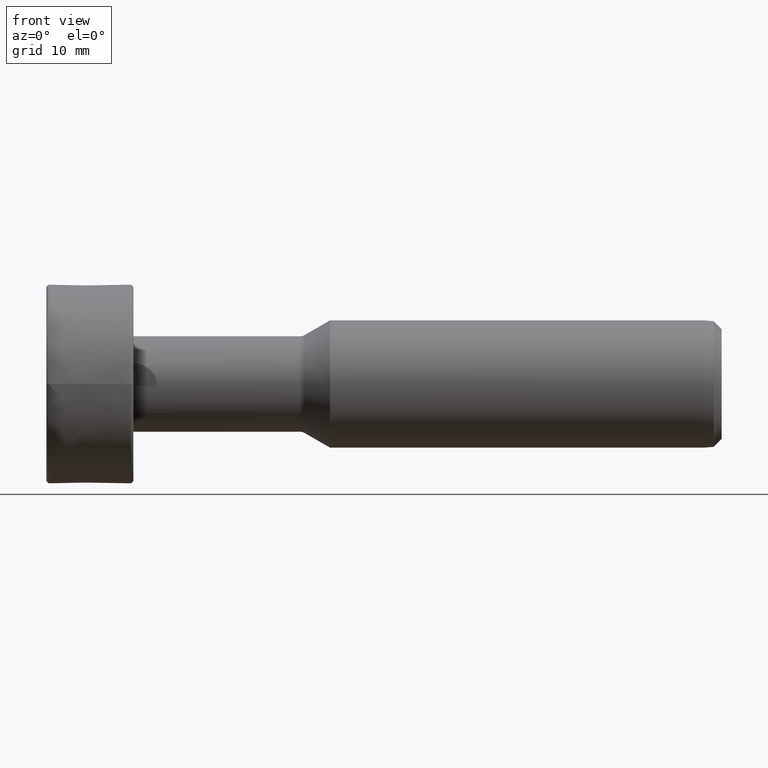
[diagram: clean part render]
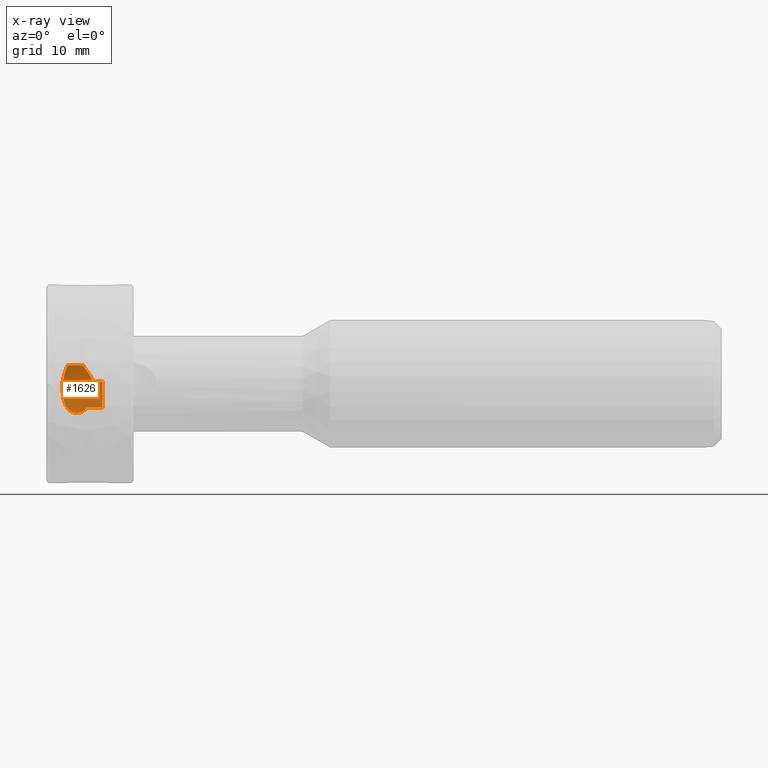
[diagram: x-ray — body ghosted, one internal face saturated and labeled with its STEP entity id]
A machine part, front view, then the same camera in x-ray: the body is ghosted and one INTERNAL B-rep face — a face not visible from any outside direction — is saturated and labeled: STEP entity #1626.
In plain terms, the highlighted face is a freeform B-spline surface patch.
Its self-contained STEP definition (entity closure, byte-faithful):
#54 = CARTESIAN_POINT ( 'NONE',  ( -82.21236994681083800, 5.681389715296036000, 2.359999999999960800 ) ) ;
#93 = CARTESIAN_POINT ( 'NONE',  ( -82.41377223601965300, 5.873575495136855700, 1.829999999999959000 ) ) ;
#98 = CARTESIAN_POINT ( 'NONE',  ( -77.89106898709837900, 6.258381755779039300, -1.910451854629144200 ) ) ;
#112 = CARTESIAN_POINT ( 'NONE',  ( -82.93455654997748600, 6.536540744666016400, 0.3013363291156840900 ) ) ;
#127 = VERTEX_POINT ( 'NONE', #2659 ) ;
#150 = CARTESIAN_POINT ( 'NONE',  ( -77.89122939808474700, 5.372999999999954900, -2.994871288672967600 ) ) ;
#160 =( BOUNDED_SURFACE ( )  B_SPLINE_SURFACE ( 3, 3, ( 
 ( #2401, #2186, #395, #2469 ),
 ( #711, #2776, #995, #3072 ),
 ( #1304, #3381, #1592, #3702 ),
 ( #1906, #98, #2200, #412 ),
 ( #2481, #724, #2793, #1010 ),
 ( #3080, #1321, #3397, #1606 ),
 ( #3714, #1922, #112, #2211 ) ),
 .UNSPECIFIED., .F., .F., .F. ) 
 B_SPLINE_SURFACE_WITH_KNOTS ( ( 4, 3, 4 ),
 ( 4, 4 ),
 ( 0.02235006169439711000, 0.02399819079621090500, 0.2267027528359130700 ),
 ( 0.0000000000000000000, 1.000000000000000000 ),
 .UNSPECIFIED. ) 
 GEOMETRIC_REPRESENTATION_ITEM ( )  RATIONAL_B_SPLINE_SURFACE ( (
 ( 1.000000000000000000, 0.9122735046954706400, 0.9122735046954706400, 1.000000000000000000),
 ( 1.000000000000000000, 0.9122735046954706400, 0.9122735046954706400, 1.000000000000000000),
 ( 1.000000000000000000, 0.9122735046954706400, 0.9122735046954706400, 1.000000000000000000),
 ( 1.000000000000000000, 0.9122735046954706400, 0.9122735046954706400, 1.000000000000000000),
 ( 1.000000000000000000, 0.9122735046954706400, 0.9122735046954706400, 1.000000000000000000),
 ( 1.000000000000000000, 0.9122735046954706400, 0.9122735046954706400, 1.000000000000000000),
 ( 1.000000000000000000, 0.9122735046954706400, 0.9122735046954706400, 1.000000000000000000) ) ) 
 REPRESENTATION_ITEM ( '' )  SURFACE ( )  );
#204 = CARTESIAN_POINT ( 'NONE',  ( -80.30338461936678100, 5.681389715296080400, 2.359999999999960800 ) ) ;
#214 = CARTESIAN_POINT ( 'NONE',  ( -82.21236994681083800, 5.681389715296036000, 2.359999999999960800 ) ) ;
#229 = CARTESIAN_POINT ( 'NONE',  ( -79.75763146719779700, 5.943922446692437400, 1.604214136166918700 ) ) ;
#239 = CARTESIAN_POINT ( 'NONE',  ( -82.83008512443952000, 6.001660126888085100, -1.367736121431567800 ) ) ;
#256 = CARTESIAN_POINT ( 'NONE',  ( -81.27947431575924500, 4.956398815248062000, -3.644536259515121400 ) ) ;
#279 = VERTEX_POINT ( 'NONE', #1142 ) ;
#303 = CARTESIAN_POINT ( 'NONE',  ( -80.93991243352060400, 4.947710242107506300, -3.656221062410815100 ) ) ;
#329 = B_SPLINE_CURVE_WITH_KNOTS ( 'NONE', 3,
 ( #537, #229, #2610, #836, #2911, #1139 ),
 .UNSPECIFIED., .F., .F.,
 ( 4, 2, 4 ),
 ( 1.951563910473908000E-018, 0.0008984144750334468700, 0.001796828950066891800 ),
 .UNSPECIFIED. ) ;
#395 = CARTESIAN_POINT ( 'NONE',  ( -77.85003232940846400, 6.536945577275368200, 0.3013549920105043600 ) ) ;
#412 = CARTESIAN_POINT ( 'NONE',  ( -77.89106898709837900, 5.681389715296028900, 2.360000000000105600 ) ) ;
#421 = B_SPLINE_CURVE_WITH_KNOTS ( 'NONE', 3,
 ( #1552, #3653, #1857, #54 ),
 .UNSPECIFIED., .F., .F.,
 ( 4, 4 ),
 ( 6.106282077343213300E-018, 0.0005986637253680639400 ),
 .UNSPECIFIED. ) ;
#445 = CARTESIAN_POINT ( 'NONE',  ( -82.76972944417190100, 6.131772617439352800, 0.5655362208290071200 ) ) ;
#473 = ORIENTED_EDGE ( 'NONE', *, *, #3342, .F. ) ;
#485 = EDGE_CURVE ( 'NONE', #1641, #3846, #329, .T. ) ;
#515 = CARTESIAN_POINT ( 'NONE',  ( -82.90769203177126200, 6.165328255636867800, -0.1217656507794920700 ) ) ;
#537 = CARTESIAN_POINT ( 'NONE',  ( -79.94665751668694000, 5.873575495136860200, 1.829999999999959000 ) ) ;
#546 = CARTESIAN_POINT ( 'NONE',  ( -82.72979969133547200, 5.832903617187693800, -1.966394439077956900 ) ) ;
#564 = CARTESIAN_POINT ( 'NONE',  ( -81.06693568702642900, 4.947710242108669800, -3.656221062409240400 ) ) ;
#609 = ORIENTED_EDGE ( 'NONE', *, *, #1365, .F. ) ;
#618 = CARTESIAN_POINT ( 'NONE',  ( -80.81285425312452700, 4.960069429671967200, -3.639651873097961200 ) ) ;
#711 = CARTESIAN_POINT ( 'NONE',  ( -77.86373094548953600, 4.920118488332617400, -3.693267274086665900 ) ) ;
#724 = CARTESIAN_POINT ( 'NONE',  ( -79.57223150805809600, 6.258381755779040200, -1.910451854629144900 ) ) ;
#727 = EDGE_CURVE ( 'NONE', #2379, #1641, #1706, .T. ) ;
#747 = VERTEX_POINT ( 'NONE', #3237 ) ;
#752 = CARTESIAN_POINT ( 'NONE',  ( -79.83393623307554800, 5.372999999999973600, -2.996441238715067600 ) ) ;
#761 = EDGE_LOOP ( 'NONE', ( #1783, #609, #2144, #2707, #2766, #473, #1018, #2721, #3304, #2016, #3801, #2899 ) ) ;
#767 = EDGE_CURVE ( 'NONE', #3220, #1417, #2522, .T. ) ;
#836 = CARTESIAN_POINT ( 'NONE',  ( -79.28002988373579300, 6.097272181570265700, 0.8588428863143676700 ) ) ;
#846 = CARTESIAN_POINT ( 'NONE',  ( -82.55878646374218000, 5.610183771814507600, -2.531980073964256000 ) ) ;
#848 = CARTESIAN_POINT ( 'NONE',  ( -80.17410978981325800, 5.751036186631983700, 2.192335277137921400 ) ) ;
#900 = B_SPLINE_CURVE_WITH_KNOTS ( 'NONE', 3,
 ( #3529, #515, #3831, #2038, #239, #2324, #546, #2626, #846, #2921, #1147, #3218, #1449, #3540, #1747, #3844, #2049, #256, #2337, #564 ),
 .UNSPECIFIED., .F., .F.,
 ( 4, 2, 2, 2, 2, 2, 2, 2, 2, 4 ),
 ( 2.710505431213761100E-019, 0.001264043738831955300, 0.001896065608247934600, 0.002528087477663914100, 0.003160109347079893000, 0.003792131216495872700, 0.004108142151203862300, 0.004424153085911851500, 0.004740164020619841600, 0.005056174955327831700 ),
 .UNSPECIFIED. ) ;
#918 = CARTESIAN_POINT ( 'NONE',  ( -80.45553111303017600, 5.040098274914382300, -3.528508453426459000 ) ) ;
#922 = CARTESIAN_POINT ( 'NONE',  ( -82.89866533100033100, 6.144736698758697100, 0.2999999999999570200 ) ) ;
#942 = VERTEX_POINT ( 'NONE', #93 ) ;
#994 = EDGE_CURVE ( 'NONE', #2339, #747, #3890, .T. ) ;
#995 = CARTESIAN_POINT ( 'NONE',  ( -77.86373094548955000, 6.536540744666013800, 0.3013363291156836400 ) ) ;
#1010 = CARTESIAN_POINT ( 'NONE',  ( -79.57223150805809600, 5.681389715296029800, 2.360000000000106000 ) ) ;
#1012 = CARTESIAN_POINT ( 'NONE',  ( -79.04725606622616900, 6.144736698758697100, 0.2999999999999570800 ) ) ;
#1018 = ORIENTED_EDGE ( 'NONE', *, *, #1271, .F. ) ;
#1036 = DIRECTION ( 'NONE',  ( -1.000000000000000000, 0.0000000000000000000, 0.0000000000000000000 ) ) ;
#1050 = CARTESIAN_POINT ( 'NONE',  ( -81.06693568702642900, 4.947710242108669800, -3.656221062409240400 ) ) ;
#1071 = VERTEX_POINT ( 'NONE', #1050 ) ;
#1105 = CARTESIAN_POINT ( 'NONE',  ( -80.93971306184813800, 5.681389715296091000, 2.359999999999962100 ) ) ;
#1139 = CARTESIAN_POINT ( 'NONE',  ( -79.04725606622616900, 6.144736698758697100, 0.2999999999999570800 ) ) ;
#1142 = CARTESIAN_POINT ( 'NONE',  ( -82.21236994681083800, 5.681389715296036000, 2.359999999999960800 ) ) ;
#1147 = CARTESIAN_POINT ( 'NONE',  ( -82.28164640299955600, 5.351118582322630600, -3.039790517262842300 ) ) ;
#1161 = CARTESIAN_POINT ( 'NONE',  ( -82.89866533100033100, 6.144736698758697100, 0.2999999999999570200 ) ) ;
#1176 = CARTESIAN_POINT ( 'NONE',  ( -82.84072026408014700, 6.144736698758703300, 0.2999999999999553600 ) ) ;
#1205 = CARTESIAN_POINT ( 'NONE',  ( -79.96922946337164700, 5.267065286034723600, -3.186395645556470600 ) ) ;
#1271 = EDGE_CURVE ( 'NONE', #1417, #942, #2352, .T. ) ;
#1304 = CARTESIAN_POINT ( 'NONE',  ( -77.87739996629396400, 4.920118488332617400, -3.693267274086665900 ) ) ;
#1321 = CARTESIAN_POINT ( 'NONE',  ( -81.25339402901781200, 6.258381755779040200, -1.910451854629144900 ) ) ;
#1326 = CARTESIAN_POINT ( 'NONE',  ( -78.54841245633292600, 6.144736698758705100, 0.2999999999999555200 ) ) ;
#1351 = CARTESIAN_POINT ( 'NONE',  ( -79.00729087313615700, 5.372999999999972700, -2.996441238715068500 ) ) ;
#1358 = CARTESIAN_POINT ( 'NONE',  ( -82.71987364605391200, 6.101708987259280000, 0.8278358452225436100 ) ) ;
#1365 = EDGE_CURVE ( 'NONE', #3846, #2339, #2738, .T. ) ;
#1402 = CARTESIAN_POINT ( 'NONE',  ( -77.85003232940846400, 0.0000000000000000000, 0.0000000000000000000 ) ) ;
#1417 = VERTEX_POINT ( 'NONE', #1480 ) ;
#1449 = CARTESIAN_POINT ( 'NONE',  ( -82.01016482512638100, 5.181904943195379900, -3.316693364894105500 ) ) ;
#1475 = CIRCLE ( 'NONE', #3329, 6.152436700589309900 ) ;
#1480 = CARTESIAN_POINT ( 'NONE',  ( -82.81174773062005600, 6.144736698758706000, 0.2999999999999571900 ) ) ;
#1552 = CARTESIAN_POINT ( 'NONE',  ( -82.41377223601965300, 5.873575495136855700, 1.829999999999959000 ) ) ;
#1592 = CARTESIAN_POINT ( 'NONE',  ( -77.87739996629395000, 6.536540744666013800, 0.3013363291156836400 ) ) ;
#1606 = CARTESIAN_POINT ( 'NONE',  ( -81.25339402901781200, 5.681389715296029800, 2.360000000000106000 ) ) ;
#1609 = CARTESIAN_POINT ( 'NONE',  ( -78.04956884643976900, 6.144736698758707800, 0.2999999999999556400 ) ) ;
#1626 = ADVANCED_FACE ( 'NONE', ( #3883 ), #160, .F. ) ;
#1641 = VERTEX_POINT ( 'NONE', #2806 ) ;
#1642 = CARTESIAN_POINT ( 'NONE',  ( -78.13931324519973000, 5.372999999999972700, -2.996441238715067600 ) ) ;
#1648 = CARTESIAN_POINT ( 'NONE',  ( -82.51691516913391000, 5.947666208068849200, 1.592198144319882500 ) ) ;
#1654 = AXIS2_PLACEMENT_3D ( 'NONE', #2813, #1036, #3107 ) ;
#1682 = EDGE_CURVE ( 'NONE', #127, #2791, #1838, .T. ) ;
#1695 = DIRECTION ( 'NONE',  ( 0.0000000000000000000, -4.440892098500626200E-015, -1.000000000000000000 ) ) ;
#1706 = B_SPLINE_CURVE_WITH_KNOTS ( 'NONE', 3,
 ( #2923, #848, #3542, #1748 ),
 .UNSPECIFIED., .F., .F.,
 ( 4, 4 ),
 ( 1.939479807224432100E-018, 0.0006671503576851005400 ),
 .UNSPECIFIED. ) ;
#1747 = CARTESIAN_POINT ( 'NONE',  ( -81.76576920615603700, 5.071226813481465500, -3.483262367301703100 ) ) ;
#1748 = CARTESIAN_POINT ( 'NONE',  ( -79.94665751668694000, 5.873575495136860200, 1.829999999999959000 ) ) ;
#1783 = ORIENTED_EDGE ( 'NONE', *, *, #994, .F. ) ;
#1838 = B_SPLINE_CURVE_WITH_KNOTS ( 'NONE', 3,
 ( #752, #2518, #1351, #3435, #1642, #3747, #1949, #150, #2242 ),
 .UNSPECIFIED., .F., .F.,
 ( 4, 1, 1, 1, 2, 4 ),
 ( 0.0000000000000000000, 0.0009919744319273036700, 0.001487961647890976400, 0.001735955255872812500, 0.001859952059863709900, 0.001983948863854606900 ),
 .UNSPECIFIED. ) ;
#1857 = CARTESIAN_POINT ( 'NONE',  ( -82.30006743293289200, 5.750733920900452200, 2.193062942145716400 ) ) ;
#1862 = EDGE_CURVE ( 'NONE', #3220, #1071, #900, .T. ) ;
#1906 = CARTESIAN_POINT ( 'NONE',  ( -77.89106898709837900, 4.920118488332617400, -3.693267274086665900 ) ) ;
#1922 = CARTESIAN_POINT ( 'NONE',  ( -82.93455654997748600, 6.258381755779040200, -1.910451854629144900 ) ) ;
#1924 = CARTESIAN_POINT ( 'NONE',  ( -77.85003232940849200, 6.145118172562525200, 0.2999999999999571900 ) ) ;
#1949 = CARTESIAN_POINT ( 'NONE',  ( -77.93265190521489700, 5.372999999999974500, -2.996441238715068500 ) ) ;
#2010 = CARTESIAN_POINT ( 'NONE',  ( -81.57604150432949600, 5.681389715296090200, 2.359999999999958100 ) ) ;
#2016 = ORIENTED_EDGE ( 'NONE', *, *, #2457, .T. ) ;
#2038 = CARTESIAN_POINT ( 'NONE',  ( -82.85170772679478500, 6.044442697465599100, -1.164487240450004600 ) ) ;
#2049 = CARTESIAN_POINT ( 'NONE',  ( -81.48181740457870600, 4.988535153485215400, -3.600423695227424200 ) ) ;
#2084 = CARTESIAN_POINT ( 'NONE',  ( -80.30338461936678100, 5.681389715296080400, 2.359999999999960800 ) ) ;
#2115 = EDGE_CURVE ( 'NONE', #2379, #279, #2315, .T. ) ;
#2144 = ORIENTED_EDGE ( 'NONE', *, *, #485, .F. ) ;
#2186 = CARTESIAN_POINT ( 'NONE',  ( -77.85003232940846400, 6.258769360953624300, -1.910570176114401400 ) ) ;
#2200 = CARTESIAN_POINT ( 'NONE',  ( -77.89106898709837900, 6.536540744666013800, 0.3013363291156836400 ) ) ;
#2211 = CARTESIAN_POINT ( 'NONE',  ( -82.93455654997751500, 5.681389715296029800, 2.360000000000106000 ) ) ;
#2242 = CARTESIAN_POINT ( 'NONE',  ( -77.85003232940847800, 5.372999999999971800, -2.997223440913022100 ) ) ;
#2315 = B_SPLINE_CURVE_WITH_KNOTS ( 'NONE', 3,
 ( #204, #1105, #2010, #214 ),
 .UNSPECIFIED., .F., .F.,
 ( 4, 4 ),
 ( 0.008955849094417742800, 0.01089669619223988100 ),
 .UNSPECIFIED. ) ;
#2324 = CARTESIAN_POINT ( 'NONE',  ( -82.76927517024599000, 5.896165167928278300, -1.768010941441332100 ) ) ;
#2337 = CARTESIAN_POINT ( 'NONE',  ( -81.17251036768837500, 4.947710242109640600, -3.656221062407930800 ) ) ;
#2339 = VERTEX_POINT ( 'NONE', #2370 ) ;
#2352 = B_SPLINE_CURVE_WITH_KNOTS ( 'NONE', 3,
 ( #2510, #445, #1358, #3439, #1648, #3755 ),
 .UNSPECIFIED., .F., .F.,
 ( 4, 2, 4 ),
 ( 4.336808689942017700E-019, 0.0008054096287301830300, 0.001610819257460365200 ),
 .UNSPECIFIED. ) ;
#2370 = CARTESIAN_POINT ( 'NONE',  ( -77.85003232940849200, 6.145118172562525200, 0.2999999999999571900 ) ) ;
#2379 = VERTEX_POINT ( 'NONE', #2084 ) ;
#2401 = CARTESIAN_POINT ( 'NONE',  ( -77.85003232940846400, 4.920423209818150000, -3.693496012051594100 ) ) ;
#2457 = EDGE_CURVE ( 'NONE', #1071, #127, #2778, .T. ) ;
#2469 = CARTESIAN_POINT ( 'NONE',  ( -77.85003232940846400, 5.681741585178439600, 2.360146163696683600 ) ) ;
#2481 = CARTESIAN_POINT ( 'NONE',  ( -79.57223150805809600, 4.920118488332618300, -3.693267274086666800 ) ) ;
#2494 = CARTESIAN_POINT ( 'NONE',  ( -77.85003232940847800, 5.372999999999971800, -2.997223440913022100 ) ) ;
#2510 = CARTESIAN_POINT ( 'NONE',  ( -82.81174773062005600, 6.144736698758706000, 0.2999999999999571900 ) ) ;
#2518 = CARTESIAN_POINT ( 'NONE',  ( -79.50327808909980800, 5.372999999999972700, -2.996441238715068100 ) ) ;
#2522 = B_SPLINE_CURVE_WITH_KNOTS ( 'NONE', 3,
 ( #1161, #2955, #1176, #3248 ),
 .UNSPECIFIED., .F., .F.,
 ( 4, 4 ),
 ( 0.0002406525739761105900, 0.0003275701743563896900 ),
 .UNSPECIFIED. ) ;
#2610 = CARTESIAN_POINT ( 'NONE',  ( -79.58458487306731400, 6.003966447154589000, 1.366281838042699500 ) ) ;
#2626 = CARTESIAN_POINT ( 'NONE',  ( -82.62427926601766600, 5.689699318160438500, -2.348785508802933900 ) ) ;
#2659 = CARTESIAN_POINT ( 'NONE',  ( -79.83393623307554800, 5.372999999999973600, -2.996441238715067600 ) ) ;
#2692 = CARTESIAN_POINT ( 'NONE',  ( -80.57007802505010800, 5.006472019205046900, -3.575554841619528600 ) ) ;
#2707 = ORIENTED_EDGE ( 'NONE', *, *, #727, .F. ) ;
#2721 = ORIENTED_EDGE ( 'NONE', *, *, #767, .F. ) ;
#2738 = B_SPLINE_CURVE_WITH_KNOTS ( 'NONE', 3,
 ( #1012, #3084, #1326, #3401, #1609, #3717, #1924 ),
 .UNSPECIFIED., .F., .F.,
 ( 4, 1, 2, 4 ),
 ( 0.004092061838750271600, 0.004690674170622130700, 0.004989980336558060700, 0.005289286502493989800 ),
 .UNSPECIFIED. ) ;
#2766 = ORIENTED_EDGE ( 'NONE', *, *, #2115, .T. ) ;
#2776 = CARTESIAN_POINT ( 'NONE',  ( -77.86373094548955000, 6.258381755779039300, -1.910451854629144200 ) ) ;
#2778 = B_SPLINE_CURVE_WITH_KNOTS ( 'NONE', 3,
 ( #3587, #303, #618, #2692, #918, #2987, #1205, #3282 ),
 .UNSPECIFIED., .F., .F.,
 ( 4, 2, 2, 4 ),
 ( 0.005056174955327831700, 0.005436386733553190100, 0.005816598511778549300, 0.006577022068229231400 ),
 .UNSPECIFIED. ) ;
#2791 = VERTEX_POINT ( 'NONE', #2494 ) ;
#2793 = CARTESIAN_POINT ( 'NONE',  ( -79.57223150805809600, 6.536540744666016400, 0.3013363291156840900 ) ) ;
#2806 = CARTESIAN_POINT ( 'NONE',  ( -79.94665751668694000, 5.873575495136860200, 1.829999999999959000 ) ) ;
#2813 = CARTESIAN_POINT ( 'NONE',  ( -77.85003232940846400, 0.0000000000000000000, 0.0000000000000000000 ) ) ;
#2899 = ORIENTED_EDGE ( 'NONE', *, *, #3879, .F. ) ;
#2911 = CARTESIAN_POINT ( 'NONE',  ( -79.14746426078687600, 6.130738437188678200, 0.5867187719606265000 ) ) ;
#2921 = CARTESIAN_POINT ( 'NONE',  ( -82.38693547842355300, 5.440329616837559000, -2.878871082324279600 ) ) ;
#2923 = CARTESIAN_POINT ( 'NONE',  ( -80.30338461936678100, 5.681389715296080400, 2.359999999999960800 ) ) ;
#2955 = CARTESIAN_POINT ( 'NONE',  ( -82.86969279754025300, 6.144736698758708600, 0.2999999999999557500 ) ) ;
#2987 = CARTESIAN_POINT ( 'NONE',  ( -80.13869445428169100, 5.161775166098820500, -3.350307441148856500 ) ) ;
#3072 = CARTESIAN_POINT ( 'NONE',  ( -77.86373094548953600, 5.681389715296028900, 2.360000000000105600 ) ) ;
#3080 = CARTESIAN_POINT ( 'NONE',  ( -81.25339402901781200, 4.920118488332618300, -3.693267274086666800 ) ) ;
#3084 = CARTESIAN_POINT ( 'NONE',  ( -78.84771862226887200, 6.144736698758707800, 0.2999999999999555800 ) ) ;
#3107 = DIRECTION ( 'NONE',  ( 0.0000000000000000000, -4.263256414560600500E-014, -1.000000000000000000 ) ) ;
#3218 = CARTESIAN_POINT ( 'NONE',  ( -82.08373193770646000, 5.223679457152527100, -3.250802034799509700 ) ) ;
#3220 = VERTEX_POINT ( 'NONE', #922 ) ;
#3237 = CARTESIAN_POINT ( 'NONE',  ( -77.85003232940846400, 6.152436700589309900, -7.731762323485210200E-016 ) ) ;
#3248 = CARTESIAN_POINT ( 'NONE',  ( -82.81174773062005600, 6.144736698758706000, 0.2999999999999571900 ) ) ;
#3282 = CARTESIAN_POINT ( 'NONE',  ( -79.83393623307554800, 5.372999999999973600, -2.996441238715067600 ) ) ;
#3304 = ORIENTED_EDGE ( 'NONE', *, *, #1862, .T. ) ;
#3329 = AXIS2_PLACEMENT_3D ( 'NONE', #1402, #3487, #1695 ) ;
#3342 = EDGE_CURVE ( 'NONE', #942, #279, #421, .T. ) ;
#3381 = CARTESIAN_POINT ( 'NONE',  ( -77.87739996629395000, 6.258381755779039300, -1.910451854629144200 ) ) ;
#3397 = CARTESIAN_POINT ( 'NONE',  ( -81.25339402901781200, 6.536540744666016400, 0.3013363291156840900 ) ) ;
#3401 = CARTESIAN_POINT ( 'NONE',  ( -78.24910629039706600, 6.144736698758708600, 0.2999999999999556900 ) ) ;
#3435 = CARTESIAN_POINT ( 'NONE',  ( -78.42863912117853400, 5.372999999999972700, -2.996441238715068100 ) ) ;
#3439 = CARTESIAN_POINT ( 'NONE',  ( -82.59282084857730400, 6.009456226584950000, 1.342609627775459100 ) ) ;
#3456 = CARTESIAN_POINT ( 'NONE',  ( -79.04725606622616900, 6.144736698758697100, 0.2999999999999570800 ) ) ;
#3487 = DIRECTION ( 'NONE',  ( -1.000000000000000000, 0.0000000000000000000, 0.0000000000000000000 ) ) ;
#3529 = CARTESIAN_POINT ( 'NONE',  ( -82.89866533100033100, 6.144736698758697100, 0.2999999999999570200 ) ) ;
#3540 = CARTESIAN_POINT ( 'NONE',  ( -81.85137101860617300, 5.105860418912920200, -3.432605875952508400 ) ) ;
#3542 = CARTESIAN_POINT ( 'NONE',  ( -80.05442286865439900, 5.815517197765865700, 2.016344149031454000 ) ) ;
#3587 = CARTESIAN_POINT ( 'NONE',  ( -81.06693568702642900, 4.947710242108669800, -3.656221062409240400 ) ) ;
#3653 = CARTESIAN_POINT ( 'NONE',  ( -82.36353549473059800, 5.815819365806293100, 2.015374309251283200 ) ) ;
#3702 = CARTESIAN_POINT ( 'NONE',  ( -77.87739996629396400, 5.681389715296028900, 2.360000000000105600 ) ) ;
#3714 = CARTESIAN_POINT ( 'NONE',  ( -82.93455654997751500, 4.920118488332618300, -3.693267274086666800 ) ) ;
#3717 = CARTESIAN_POINT ( 'NONE',  ( -77.94979430092696800, 6.142340039668085600, 0.2999999999999571900 ) ) ;
#3747 = CARTESIAN_POINT ( 'NONE',  ( -78.01531644120886700, 5.372999999999971800, -2.996441238715068100 ) ) ;
#3755 = CARTESIAN_POINT ( 'NONE',  ( -82.41377223601965300, 5.873575495136855700, 1.829999999999959000 ) ) ;
#3801 = ORIENTED_EDGE ( 'NONE', *, *, #1682, .T. ) ;
#3831 = CARTESIAN_POINT ( 'NONE',  ( -82.89886474803294900, 6.141949806115292200, -0.5462211204343308000 ) ) ;
#3844 = CARTESIAN_POINT ( 'NONE',  ( -81.57941690206280300, 5.012013636332537400, -3.567937418516520700 ) ) ;
#3846 = VERTEX_POINT ( 'NONE', #3456 ) ;
#3879 = EDGE_CURVE ( 'NONE', #747, #2791, #1475, .T. ) ;
#3883 = FACE_OUTER_BOUND ( 'NONE', #761, .T. ) ;
#3890 = CIRCLE ( 'NONE', #1654, 6.152436700589309900 ) ;